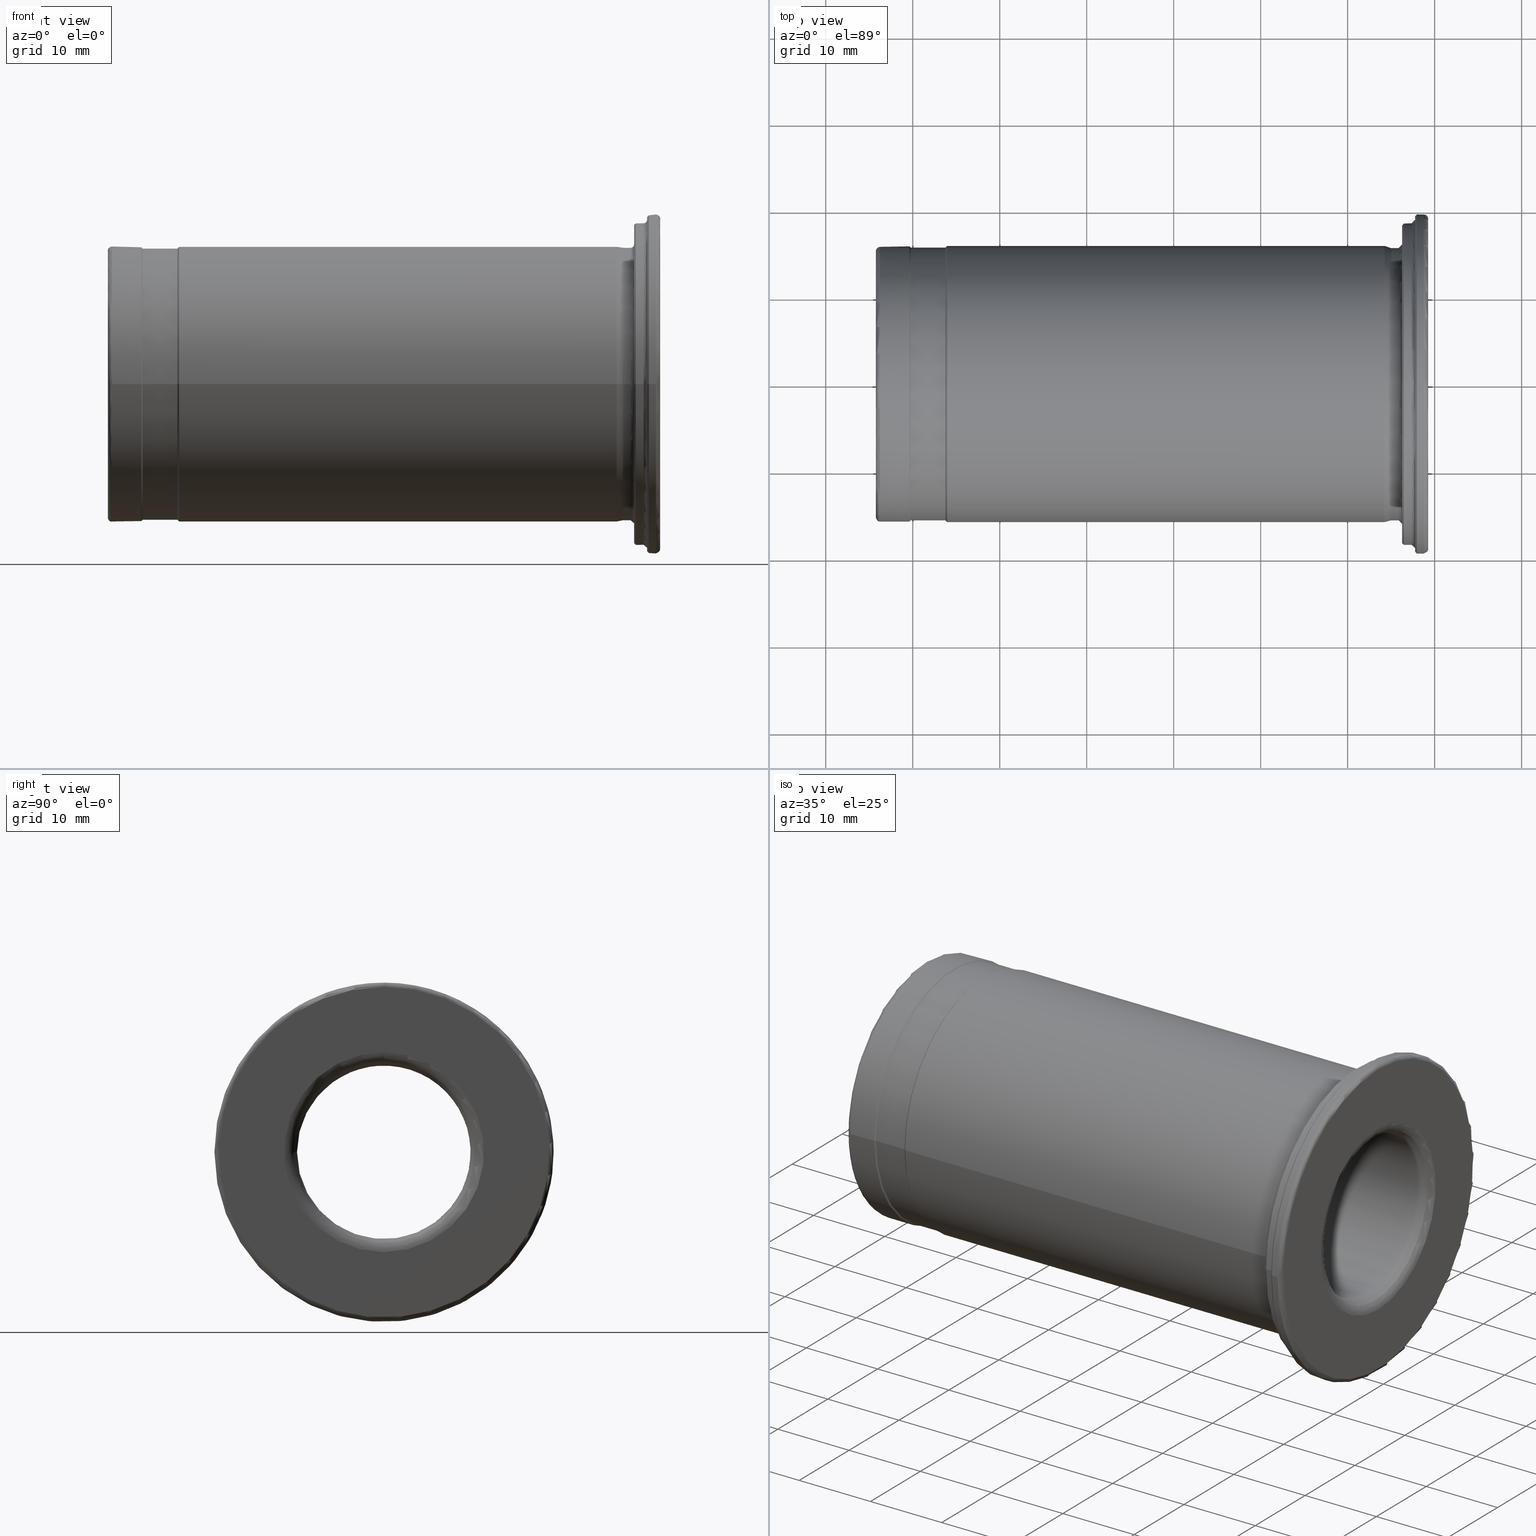
[diagram: canonical four-view strip — front | top / right | iso, engineering-drawing reading convention]
A machine part, canonical four-view strip (front | top / right | iso — engineering-drawing reading convention). The complete STEP part file that produces these views, byte-faithful:
ISO-10303-21;
HEADER;
/* Generated by software containing ST-Developer
 * from STEP Tools, Inc. (www.steptools.com) 
 */

FILE_DESCRIPTION(
/* description */ (''),
/* implementation_level */ '2;1');

FILE_NAME(
/* name */ 
'\\\\SSKT-NAS\\Lab-Data\\\X2\C5F0AD6CC18C\X0\\\DRAWING_3D\\1. \X2\C778BCA4D130\X0\\\
4. LAY-OUT\\ACCESSORY&OTEHERS\\HYDRAULIC CHUCK\\REDUCTION SLEEVE (COLL
ET)\\HS-\X2\D574C678\X0\\\HS31.75\\HS31.75-20\\HS31.75-20.stp',
/* time_stamp */ '2023-08-17T14:51:01+09:00',
/* author */ ('YSH'),
/* organization */ (''),
/* preprocessor_version */ 'ST-DEVELOPER v18.1',
/* originating_system */ 'Autodesk Inventor 2022',
/* authorisation */ '');

FILE_SCHEMA (('AUTOMOTIVE_DESIGN { 1 0 10303 214 3 1 1 }'));
ENDSEC;

DATA;
#10=MECHANICAL_DESIGN_GEOMETRIC_PRESENTATION_REPRESENTATION('',(#13),#878);
#11=SHAPE_REPRESENTATION_RELATIONSHIP('SRR','None',#885,#12);
#12=ADVANCED_BREP_SHAPE_REPRESENTATION('',(#14),#877);
#13=STYLED_ITEM('',(#894),#14);
#14=MANIFOLD_SOLID_BREP('\X2\C194B9ACB4DC\X0\1',#460);
#15=FACE_BOUND('',#76,.T.);
#16=FACE_BOUND('',#88,.T.);
#17=FACE_BOUND('',#93,.T.);
#18=FACE_BOUND('',#98,.T.);
#19=PLANE('',#502);
#20=PLANE('',#531);
#21=PLANE('',#541);
#22=PLANE('',#551);
#23=TOROIDAL_SURFACE('',#492,14.4999999999996,1.5);
#24=TOROIDAL_SURFACE('',#499,14.4999999999996,1.5);
#25=TOROIDAL_SURFACE('',#504,15.3250000000018,0.5);
#26=TOROIDAL_SURFACE('',#521,16.0750000000023,0.4);
#27=TOROIDAL_SURFACE('',#528,16.0750000000018,0.4);
#28=TOROIDAL_SURFACE('',#538,18.9000000000001,0.4);
#29=TOROIDAL_SURFACE('',#548,19.,0.5);
#30=TOROIDAL_SURFACE('',#553,11.5000000000005,1.5);
#31=TOROIDAL_SURFACE('',#560,11.5000000000005,1.5);
#32=CONICAL_SURFACE('',#487,11.4999999999988,0.78539816339791);
#33=CONICAL_SURFACE('',#496,13.2452255443927,0.52359877559794);
#34=CONICAL_SURFACE('',#510,15.7500000000019,0.785398163396797);
#35=CONICAL_SURFACE('',#514,15.7750000000009,0.785398163397049);
#36=CONICAL_SURFACE('',#518,15.7818148347441,0.261799387799245);
#37=CONICAL_SURFACE('',#533,18.400000000001,0.785398163397448);
#38=CONICAL_SURFACE('',#543,19.3999999999996,0.785398163397448);
#39=CONICAL_SURFACE('',#557,10.2452255443938,0.523598775598702);
#40=FACE_OUTER_BOUND('',#69,.T.);
#41=FACE_OUTER_BOUND('',#70,.T.);
#42=FACE_OUTER_BOUND('',#71,.T.);
#43=FACE_OUTER_BOUND('',#72,.T.);
#44=FACE_OUTER_BOUND('',#73,.T.);
#45=FACE_OUTER_BOUND('',#74,.T.);
#46=FACE_OUTER_BOUND('',#75,.T.);
#47=FACE_OUTER_BOUND('',#77,.T.);
#48=FACE_OUTER_BOUND('',#78,.T.);
#49=FACE_OUTER_BOUND('',#79,.T.);
#50=FACE_OUTER_BOUND('',#80,.T.);
#51=FACE_OUTER_BOUND('',#81,.T.);
#52=FACE_OUTER_BOUND('',#82,.T.);
#53=FACE_OUTER_BOUND('',#83,.T.);
#54=FACE_OUTER_BOUND('',#84,.T.);
#55=FACE_OUTER_BOUND('',#85,.T.);
#56=FACE_OUTER_BOUND('',#86,.T.);
#57=FACE_OUTER_BOUND('',#87,.T.);
#58=FACE_OUTER_BOUND('',#89,.T.);
#59=FACE_OUTER_BOUND('',#90,.T.);
#60=FACE_OUTER_BOUND('',#91,.T.);
#61=FACE_OUTER_BOUND('',#92,.T.);
#62=FACE_OUTER_BOUND('',#94,.T.);
#63=FACE_OUTER_BOUND('',#95,.T.);
#64=FACE_OUTER_BOUND('',#96,.T.);
#65=FACE_OUTER_BOUND('',#97,.T.);
#66=FACE_OUTER_BOUND('',#99,.T.);
#67=FACE_OUTER_BOUND('',#100,.T.);
#68=FACE_OUTER_BOUND('',#101,.T.);
#69=EDGE_LOOP('',(#291,#292,#293,#294,#295));
#70=EDGE_LOOP('',(#296,#297,#298,#299));
#71=EDGE_LOOP('',(#300,#301,#302,#303,#304));
#72=EDGE_LOOP('',(#305,#306,#307,#308,#309,#310));
#73=EDGE_LOOP('',(#311,#312,#313,#314,#315,#316));
#74=EDGE_LOOP('',(#317,#318,#319,#320,#321));
#75=EDGE_LOOP('',(#322));
#76=EDGE_LOOP('',(#323));
#77=EDGE_LOOP('',(#324,#325,#326,#327,#328));
#78=EDGE_LOOP('',(#329,#330,#331,#332,#333));
#79=EDGE_LOOP('',(#334,#335,#336,#337));
#80=EDGE_LOOP('',(#338,#339,#340,#341));
#81=EDGE_LOOP('',(#342,#343,#344,#345));
#82=EDGE_LOOP('',(#346,#347,#348,#349));
#83=EDGE_LOOP('',(#350,#351,#352,#353,#354));
#84=EDGE_LOOP('',(#355,#356,#357,#358,#359,#360));
#85=EDGE_LOOP('',(#361,#362,#363,#364,#365,#366));
#86=EDGE_LOOP('',(#367,#368,#369,#370,#371));
#87=EDGE_LOOP('',(#372));
#88=EDGE_LOOP('',(#373));
#89=EDGE_LOOP('',(#374,#375,#376,#377));
#90=EDGE_LOOP('',(#378,#379,#380,#381,#382));
#91=EDGE_LOOP('',(#383,#384,#385,#386,#387));
#92=EDGE_LOOP('',(#388));
#93=EDGE_LOOP('',(#389));
#94=EDGE_LOOP('',(#390,#391,#392,#393));
#95=EDGE_LOOP('',(#394,#395,#396,#397,#398));
#96=EDGE_LOOP('',(#399,#400,#401,#402,#403));
#97=EDGE_LOOP('',(#404));
#98=EDGE_LOOP('',(#405));
#99=EDGE_LOOP('',(#406,#407,#408,#409,#410));
#100=EDGE_LOOP('',(#411,#412,#413,#414,#415,#416));
#101=EDGE_LOOP('',(#417,#418,#419,#420,#421,#422));
#102=LINE('',#745,#118);
#103=LINE('',#749,#119);
#104=LINE('',#753,#120);
#105=LINE('',#765,#121);
#106=LINE('',#785,#122);
#107=LINE('',#789,#123);
#108=LINE('',#793,#124);
#109=LINE('',#797,#125);
#110=LINE('',#801,#126);
#111=LINE('',#806,#127);
#112=LINE('',#818,#128);
#113=LINE('',#830,#129);
#114=LINE('',#835,#130);
#115=LINE('',#847,#131);
#116=LINE('',#852,#132);
#117=LINE('',#869,#133);
#118=VECTOR('',#570,10.);
#119=VECTOR('',#575,11.4999999999988);
#120=VECTOR('',#580,12.9999999999996);
#121=VECTOR('',#595,13.2452255443927);
#122=VECTOR('',#622,15.8250000000018);
#123=VECTOR('',#627,15.7500000000019);
#124=VECTOR('',#632,15.6750000000021);
#125=VECTOR('',#637,15.7750000000009);
#126=VECTOR('',#642,15.8750000000001);
#127=VECTOR('',#647,15.7818148347441);
#128=VECTOR('',#662,15.6750000000026);
#129=VECTOR('',#679,18.400000000001);
#130=VECTOR('',#684,18.5000000000005);
#131=VECTOR('',#701,19.3999999999996);
#132=VECTOR('',#706,19.5);
#133=VECTOR('',#729,10.2452255443938);
#134=CIRCLE('',#484,10.);
#135=CIRCLE('',#485,10.);
#136=CIRCLE('',#486,10.);
#137=CIRCLE('',#488,12.9999999999992);
#138=CIRCLE('',#490,12.9999999999996);
#139=CIRCLE('',#491,12.9999999999996);
#140=CIRCLE('',#493,13.0511112605659);
#141=CIRCLE('',#494,13.0511112605659);
#142=CIRCLE('',#495,1.5);
#143=CIRCLE('',#497,13.4393398282196);
#144=CIRCLE('',#498,13.4393398282196);
#145=CIRCLE('',#500,14.4999999999996);
#146=CIRCLE('',#501,1.5);
#147=CIRCLE('',#503,15.3250000000018);
#148=CIRCLE('',#505,15.8250000000018);
#149=CIRCLE('',#506,15.8250000000018);
#150=CIRCLE('',#507,0.5);
#151=CIRCLE('',#509,15.8250000000018);
#152=CIRCLE('',#511,15.6750000000021);
#153=CIRCLE('',#513,15.6750000000021);
#154=CIRCLE('',#515,15.8749999999997);
#155=CIRCLE('',#517,15.8750000000006);
#156=CIRCLE('',#519,15.6886296694867);
#157=CIRCLE('',#520,15.6886296694867);
#158=CIRCLE('',#522,0.4);
#159=CIRCLE('',#523,15.6750000000023);
#160=CIRCLE('',#524,15.6750000000023);
#161=CIRCLE('',#526,15.6750000000026);
#162=CIRCLE('',#527,15.6750000000026);
#163=CIRCLE('',#529,0.4);
#164=CIRCLE('',#530,16.0750000000018);
#165=CIRCLE('',#532,18.3000000000011);
#166=CIRCLE('',#534,18.5000000000009);
#167=CIRCLE('',#536,18.5);
#168=CIRCLE('',#537,18.5);
#169=CIRCLE('',#539,0.4);
#170=CIRCLE('',#540,18.9000000000001);
#171=CIRCLE('',#542,19.2999999999997);
#172=CIRCLE('',#544,19.4999999999995);
#173=CIRCLE('',#546,19.5);
#174=CIRCLE('',#547,19.5);
#175=CIRCLE('',#549,19.);
#176=CIRCLE('',#550,0.5);
#177=CIRCLE('',#552,11.5000000000005);
#178=CIRCLE('',#554,10.4393398282205);
#179=CIRCLE('',#555,10.4393398282205);
#180=CIRCLE('',#556,1.5);
#181=CIRCLE('',#558,10.0511112605669);
#182=CIRCLE('',#559,10.0511112605669);
#183=CIRCLE('',#561,1.5);
#184=VERTEX_POINT('',#740);
#185=VERTEX_POINT('',#741);
#186=VERTEX_POINT('',#744);
#187=VERTEX_POINT('',#748);
#188=VERTEX_POINT('',#752);
#189=VERTEX_POINT('',#754);
#190=VERTEX_POINT('',#758);
#191=VERTEX_POINT('',#759);
#192=VERTEX_POINT('',#764);
#193=VERTEX_POINT('',#766);
#194=VERTEX_POINT('',#770);
#195=VERTEX_POINT('',#774);
#196=VERTEX_POINT('',#777);
#197=VERTEX_POINT('',#778);
#198=VERTEX_POINT('',#783);
#199=VERTEX_POINT('',#787);
#200=VERTEX_POINT('',#791);
#201=VERTEX_POINT('',#795);
#202=VERTEX_POINT('',#799);
#203=VERTEX_POINT('',#803);
#204=VERTEX_POINT('',#804);
#205=VERTEX_POINT('',#809);
#206=VERTEX_POINT('',#811);
#207=VERTEX_POINT('',#815);
#208=VERTEX_POINT('',#816);
#209=VERTEX_POINT('',#821);
#210=VERTEX_POINT('',#825);
#211=VERTEX_POINT('',#828);
#212=VERTEX_POINT('',#832);
#213=VERTEX_POINT('',#833);
#214=VERTEX_POINT('',#838);
#215=VERTEX_POINT('',#842);
#216=VERTEX_POINT('',#845);
#217=VERTEX_POINT('',#849);
#218=VERTEX_POINT('',#850);
#219=VERTEX_POINT('',#855);
#220=VERTEX_POINT('',#859);
#221=VERTEX_POINT('',#862);
#222=VERTEX_POINT('',#863);
#223=VERTEX_POINT('',#868);
#224=VERTEX_POINT('',#870);
#225=EDGE_CURVE('',#184,#185,#134,.T.);
#226=EDGE_CURVE('',#185,#184,#135,.T.);
#227=EDGE_CURVE('',#184,#186,#102,.T.);
#228=EDGE_CURVE('',#186,#186,#136,.T.);
#229=EDGE_CURVE('',#186,#187,#103,.T.);
#230=EDGE_CURVE('',#187,#187,#137,.T.);
#231=EDGE_CURVE('',#187,#188,#104,.T.);
#232=EDGE_CURVE('',#189,#188,#138,.T.);
#233=EDGE_CURVE('',#188,#189,#139,.T.);
#234=EDGE_CURVE('',#190,#191,#140,.T.);
#235=EDGE_CURVE('',#191,#190,#141,.T.);
#236=EDGE_CURVE('',#191,#189,#142,.T.);
#237=EDGE_CURVE('',#190,#192,#105,.T.);
#238=EDGE_CURVE('',#193,#192,#143,.T.);
#239=EDGE_CURVE('',#192,#193,#144,.T.);
#240=EDGE_CURVE('',#194,#194,#145,.T.);
#241=EDGE_CURVE('',#194,#193,#146,.T.);
#242=EDGE_CURVE('',#195,#195,#147,.T.);
#243=EDGE_CURVE('',#196,#197,#148,.T.);
#244=EDGE_CURVE('',#197,#196,#149,.T.);
#245=EDGE_CURVE('',#197,#195,#150,.T.);
#246=EDGE_CURVE('',#198,#198,#151,.T.);
#247=EDGE_CURVE('',#198,#196,#106,.T.);
#248=EDGE_CURVE('',#199,#199,#152,.T.);
#249=EDGE_CURVE('',#199,#198,#107,.T.);
#250=EDGE_CURVE('',#200,#200,#153,.T.);
#251=EDGE_CURVE('',#200,#199,#108,.T.);
#252=EDGE_CURVE('',#201,#201,#154,.T.);
#253=EDGE_CURVE('',#201,#200,#109,.T.);
#254=EDGE_CURVE('',#202,#202,#155,.T.);
#255=EDGE_CURVE('',#202,#201,#110,.T.);
#256=EDGE_CURVE('',#203,#204,#156,.T.);
#257=EDGE_CURVE('',#203,#202,#111,.T.);
#258=EDGE_CURVE('',#204,#203,#157,.T.);
#259=EDGE_CURVE('',#204,#205,#158,.T.);
#260=EDGE_CURVE('',#206,#205,#159,.T.);
#261=EDGE_CURVE('',#205,#206,#160,.T.);
#262=EDGE_CURVE('',#207,#208,#161,.T.);
#263=EDGE_CURVE('',#207,#206,#112,.T.);
#264=EDGE_CURVE('',#208,#207,#162,.T.);
#265=EDGE_CURVE('',#208,#209,#163,.T.);
#266=EDGE_CURVE('',#209,#209,#164,.T.);
#267=EDGE_CURVE('',#210,#210,#165,.T.);
#268=EDGE_CURVE('',#211,#211,#166,.T.);
#269=EDGE_CURVE('',#211,#210,#113,.T.);
#270=EDGE_CURVE('',#212,#213,#167,.T.);
#271=EDGE_CURVE('',#212,#211,#114,.T.);
#272=EDGE_CURVE('',#213,#212,#168,.T.);
#273=EDGE_CURVE('',#213,#214,#169,.T.);
#274=EDGE_CURVE('',#214,#214,#170,.T.);
#275=EDGE_CURVE('',#215,#215,#171,.T.);
#276=EDGE_CURVE('',#216,#216,#172,.T.);
#277=EDGE_CURVE('',#216,#215,#115,.T.);
#278=EDGE_CURVE('',#217,#218,#173,.T.);
#279=EDGE_CURVE('',#217,#216,#116,.T.);
#280=EDGE_CURVE('',#218,#217,#174,.T.);
#281=EDGE_CURVE('',#219,#219,#175,.T.);
#282=EDGE_CURVE('',#219,#218,#176,.T.);
#283=EDGE_CURVE('',#220,#220,#177,.T.);
#284=EDGE_CURVE('',#221,#222,#178,.T.);
#285=EDGE_CURVE('',#222,#221,#179,.T.);
#286=EDGE_CURVE('',#222,#220,#180,.T.);
#287=EDGE_CURVE('',#221,#223,#117,.T.);
#288=EDGE_CURVE('',#224,#223,#181,.T.);
#289=EDGE_CURVE('',#223,#224,#182,.T.);
#290=EDGE_CURVE('',#185,#224,#183,.T.);
#291=ORIENTED_EDGE('',*,*,#225,.T.);
#292=ORIENTED_EDGE('',*,*,#226,.T.);
#293=ORIENTED_EDGE('',*,*,#227,.T.);
#294=ORIENTED_EDGE('',*,*,#228,.F.);
#295=ORIENTED_EDGE('',*,*,#227,.F.);
#296=ORIENTED_EDGE('',*,*,#228,.T.);
#297=ORIENTED_EDGE('',*,*,#229,.T.);
#298=ORIENTED_EDGE('',*,*,#230,.F.);
#299=ORIENTED_EDGE('',*,*,#229,.F.);
#300=ORIENTED_EDGE('',*,*,#230,.T.);
#301=ORIENTED_EDGE('',*,*,#231,.T.);
#302=ORIENTED_EDGE('',*,*,#232,.F.);
#303=ORIENTED_EDGE('',*,*,#233,.F.);
#304=ORIENTED_EDGE('',*,*,#231,.F.);
#305=ORIENTED_EDGE('',*,*,#234,.F.);
#306=ORIENTED_EDGE('',*,*,#235,.F.);
#307=ORIENTED_EDGE('',*,*,#236,.T.);
#308=ORIENTED_EDGE('',*,*,#232,.T.);
#309=ORIENTED_EDGE('',*,*,#233,.T.);
#310=ORIENTED_EDGE('',*,*,#236,.F.);
#311=ORIENTED_EDGE('',*,*,#234,.T.);
#312=ORIENTED_EDGE('',*,*,#235,.T.);
#313=ORIENTED_EDGE('',*,*,#237,.T.);
#314=ORIENTED_EDGE('',*,*,#238,.F.);
#315=ORIENTED_EDGE('',*,*,#239,.F.);
#316=ORIENTED_EDGE('',*,*,#237,.F.);
#317=ORIENTED_EDGE('',*,*,#240,.F.);
#318=ORIENTED_EDGE('',*,*,#241,.T.);
#319=ORIENTED_EDGE('',*,*,#238,.T.);
#320=ORIENTED_EDGE('',*,*,#239,.T.);
#321=ORIENTED_EDGE('',*,*,#241,.F.);
#322=ORIENTED_EDGE('',*,*,#242,.F.);
#323=ORIENTED_EDGE('',*,*,#240,.T.);
#324=ORIENTED_EDGE('',*,*,#243,.F.);
#325=ORIENTED_EDGE('',*,*,#244,.F.);
#326=ORIENTED_EDGE('',*,*,#245,.T.);
#327=ORIENTED_EDGE('',*,*,#242,.T.);
#328=ORIENTED_EDGE('',*,*,#245,.F.);
#329=ORIENTED_EDGE('',*,*,#246,.F.);
#330=ORIENTED_EDGE('',*,*,#247,.T.);
#331=ORIENTED_EDGE('',*,*,#243,.T.);
#332=ORIENTED_EDGE('',*,*,#244,.T.);
#333=ORIENTED_EDGE('',*,*,#247,.F.);
#334=ORIENTED_EDGE('',*,*,#248,.F.);
#335=ORIENTED_EDGE('',*,*,#249,.T.);
#336=ORIENTED_EDGE('',*,*,#246,.T.);
#337=ORIENTED_EDGE('',*,*,#249,.F.);
#338=ORIENTED_EDGE('',*,*,#250,.F.);
#339=ORIENTED_EDGE('',*,*,#251,.T.);
#340=ORIENTED_EDGE('',*,*,#248,.T.);
#341=ORIENTED_EDGE('',*,*,#251,.F.);
#342=ORIENTED_EDGE('',*,*,#252,.F.);
#343=ORIENTED_EDGE('',*,*,#253,.T.);
#344=ORIENTED_EDGE('',*,*,#250,.T.);
#345=ORIENTED_EDGE('',*,*,#253,.F.);
#346=ORIENTED_EDGE('',*,*,#254,.F.);
#347=ORIENTED_EDGE('',*,*,#255,.T.);
#348=ORIENTED_EDGE('',*,*,#252,.T.);
#349=ORIENTED_EDGE('',*,*,#255,.F.);
#350=ORIENTED_EDGE('',*,*,#256,.F.);
#351=ORIENTED_EDGE('',*,*,#257,.T.);
#352=ORIENTED_EDGE('',*,*,#254,.T.);
#353=ORIENTED_EDGE('',*,*,#257,.F.);
#354=ORIENTED_EDGE('',*,*,#258,.F.);
#355=ORIENTED_EDGE('',*,*,#256,.T.);
#356=ORIENTED_EDGE('',*,*,#259,.T.);
#357=ORIENTED_EDGE('',*,*,#260,.F.);
#358=ORIENTED_EDGE('',*,*,#261,.F.);
#359=ORIENTED_EDGE('',*,*,#259,.F.);
#360=ORIENTED_EDGE('',*,*,#258,.T.);
#361=ORIENTED_EDGE('',*,*,#262,.F.);
#362=ORIENTED_EDGE('',*,*,#263,.T.);
#363=ORIENTED_EDGE('',*,*,#260,.T.);
#364=ORIENTED_EDGE('',*,*,#261,.T.);
#365=ORIENTED_EDGE('',*,*,#263,.F.);
#366=ORIENTED_EDGE('',*,*,#264,.F.);
#367=ORIENTED_EDGE('',*,*,#262,.T.);
#368=ORIENTED_EDGE('',*,*,#265,.T.);
#369=ORIENTED_EDGE('',*,*,#266,.F.);
#370=ORIENTED_EDGE('',*,*,#265,.F.);
#371=ORIENTED_EDGE('',*,*,#264,.T.);
#372=ORIENTED_EDGE('',*,*,#267,.F.);
#373=ORIENTED_EDGE('',*,*,#266,.T.);
#374=ORIENTED_EDGE('',*,*,#268,.F.);
#375=ORIENTED_EDGE('',*,*,#269,.T.);
#376=ORIENTED_EDGE('',*,*,#267,.T.);
#377=ORIENTED_EDGE('',*,*,#269,.F.);
#378=ORIENTED_EDGE('',*,*,#270,.F.);
#379=ORIENTED_EDGE('',*,*,#271,.T.);
#380=ORIENTED_EDGE('',*,*,#268,.T.);
#381=ORIENTED_EDGE('',*,*,#271,.F.);
#382=ORIENTED_EDGE('',*,*,#272,.F.);
#383=ORIENTED_EDGE('',*,*,#270,.T.);
#384=ORIENTED_EDGE('',*,*,#273,.T.);
#385=ORIENTED_EDGE('',*,*,#274,.F.);
#386=ORIENTED_EDGE('',*,*,#273,.F.);
#387=ORIENTED_EDGE('',*,*,#272,.T.);
#388=ORIENTED_EDGE('',*,*,#275,.F.);
#389=ORIENTED_EDGE('',*,*,#274,.T.);
#390=ORIENTED_EDGE('',*,*,#276,.F.);
#391=ORIENTED_EDGE('',*,*,#277,.T.);
#392=ORIENTED_EDGE('',*,*,#275,.T.);
#393=ORIENTED_EDGE('',*,*,#277,.F.);
#394=ORIENTED_EDGE('',*,*,#278,.F.);
#395=ORIENTED_EDGE('',*,*,#279,.T.);
#396=ORIENTED_EDGE('',*,*,#276,.T.);
#397=ORIENTED_EDGE('',*,*,#279,.F.);
#398=ORIENTED_EDGE('',*,*,#280,.F.);
#399=ORIENTED_EDGE('',*,*,#281,.F.);
#400=ORIENTED_EDGE('',*,*,#282,.T.);
#401=ORIENTED_EDGE('',*,*,#280,.T.);
#402=ORIENTED_EDGE('',*,*,#278,.T.);
#403=ORIENTED_EDGE('',*,*,#282,.F.);
#404=ORIENTED_EDGE('',*,*,#281,.T.);
#405=ORIENTED_EDGE('',*,*,#283,.F.);
#406=ORIENTED_EDGE('',*,*,#284,.F.);
#407=ORIENTED_EDGE('',*,*,#285,.F.);
#408=ORIENTED_EDGE('',*,*,#286,.T.);
#409=ORIENTED_EDGE('',*,*,#283,.T.);
#410=ORIENTED_EDGE('',*,*,#286,.F.);
#411=ORIENTED_EDGE('',*,*,#284,.T.);
#412=ORIENTED_EDGE('',*,*,#285,.T.);
#413=ORIENTED_EDGE('',*,*,#287,.T.);
#414=ORIENTED_EDGE('',*,*,#288,.F.);
#415=ORIENTED_EDGE('',*,*,#289,.F.);
#416=ORIENTED_EDGE('',*,*,#287,.F.);
#417=ORIENTED_EDGE('',*,*,#225,.F.);
#418=ORIENTED_EDGE('',*,*,#226,.F.);
#419=ORIENTED_EDGE('',*,*,#290,.T.);
#420=ORIENTED_EDGE('',*,*,#288,.T.);
#421=ORIENTED_EDGE('',*,*,#289,.T.);
#422=ORIENTED_EDGE('',*,*,#290,.F.);
#423=CYLINDRICAL_SURFACE('',#483,10.);
#424=CYLINDRICAL_SURFACE('',#489,12.9999999999996);
#425=CYLINDRICAL_SURFACE('',#508,15.8250000000018);
#426=CYLINDRICAL_SURFACE('',#512,15.6750000000021);
#427=CYLINDRICAL_SURFACE('',#516,15.8750000000001);
#428=CYLINDRICAL_SURFACE('',#525,15.6750000000026);
#429=CYLINDRICAL_SURFACE('',#535,18.5000000000005);
#430=CYLINDRICAL_SURFACE('',#545,19.5);
#431=ADVANCED_FACE('',(#40),#423,.F.);
#432=ADVANCED_FACE('',(#41),#32,.F.);
#433=ADVANCED_FACE('',(#42),#424,.F.);
#434=ADVANCED_FACE('',(#43),#23,.T.);
#435=ADVANCED_FACE('',(#44),#33,.F.);
#436=ADVANCED_FACE('',(#45),#24,.T.);
#437=ADVANCED_FACE('',(#46,#15),#19,.T.);
#438=ADVANCED_FACE('',(#47),#25,.T.);
#439=ADVANCED_FACE('',(#48),#425,.T.);
#440=ADVANCED_FACE('',(#49),#34,.T.);
#441=ADVANCED_FACE('',(#50),#426,.T.);
#442=ADVANCED_FACE('',(#51),#35,.T.);
#443=ADVANCED_FACE('',(#52),#427,.T.);
#444=ADVANCED_FACE('',(#53),#36,.T.);
#445=ADVANCED_FACE('',(#54),#26,.F.);
#446=ADVANCED_FACE('',(#55),#428,.T.);
#447=ADVANCED_FACE('',(#56),#27,.F.);
#448=ADVANCED_FACE('',(#57,#16),#20,.T.);
#449=ADVANCED_FACE('',(#58),#37,.T.);
#450=ADVANCED_FACE('',(#59),#429,.T.);
#451=ADVANCED_FACE('',(#60),#28,.F.);
#452=ADVANCED_FACE('',(#61,#17),#21,.T.);
#453=ADVANCED_FACE('',(#62),#38,.T.);
#454=ADVANCED_FACE('',(#63),#430,.T.);
#455=ADVANCED_FACE('',(#64),#29,.T.);
#456=ADVANCED_FACE('',(#65,#18),#22,.T.);
#457=ADVANCED_FACE('',(#66),#30,.T.);
#458=ADVANCED_FACE('',(#67),#39,.F.);
#459=ADVANCED_FACE('',(#68),#31,.T.);
#460=CLOSED_SHELL('',(#431,#432,#433,#434,#435,#436,#437,#438,#439,#440,
#441,#442,#443,#444,#445,#446,#447,#448,#449,#450,#451,#452,#453,#454,#455,
#456,#457,#458,#459));
#461=DERIVED_UNIT_ELEMENT(#464,1.);
#462=DERIVED_UNIT_ELEMENT(#880,-3.);
#463=DIMENSIONAL_EXPONENTS(1.,0.,0.,0.,0.,0.,0.);
#464=(
CONVERSION_BASED_UNIT('gram',#466)
MASS_UNIT()
NAMED_UNIT(#463)
);
#465=(
MASS_UNIT()
NAMED_UNIT(*)
SI_UNIT(.KILO.,.GRAM.)
);
#466=MASS_MEASURE_WITH_UNIT(MASS_MEASURE(0.001),#465);
#467=DERIVED_UNIT((#461,#462));
#468=MEASURE_REPRESENTATION_ITEM('density measure',
POSITIVE_RATIO_MEASURE(7.85),#467);
#469=PROPERTY_DEFINITION_REPRESENTATION(#474,#471);
#470=PROPERTY_DEFINITION_REPRESENTATION(#475,#472);
#471=REPRESENTATION('material name',(#473),#877);
#472=REPRESENTATION('density',(#468),#877);
#473=DESCRIPTIVE_REPRESENTATION_ITEM('SUJ2','SUJ2');
#474=PROPERTY_DEFINITION('material property','material name',#887);
#475=PROPERTY_DEFINITION('material property','density of part',#887);
#476=DATE_TIME_ROLE('creation_date');
#477=APPLIED_DATE_AND_TIME_ASSIGNMENT(#478,#476,(#887));
#478=DATE_AND_TIME(#479,#480);
#479=CALENDAR_DATE(2023,17,8);
#480=LOCAL_TIME(0,0,0.,#481);
#481=COORDINATED_UNIVERSAL_TIME_OFFSET(0,0,.BEHIND.);
#482=AXIS2_PLACEMENT_3D('placement',#738,#562,#563);
#483=AXIS2_PLACEMENT_3D('',#739,#564,#565);
#484=AXIS2_PLACEMENT_3D('',#742,#566,#567);
#485=AXIS2_PLACEMENT_3D('',#743,#568,#569);
#486=AXIS2_PLACEMENT_3D('',#746,#571,#572);
#487=AXIS2_PLACEMENT_3D('',#747,#573,#574);
#488=AXIS2_PLACEMENT_3D('',#750,#576,#577);
#489=AXIS2_PLACEMENT_3D('',#751,#578,#579);
#490=AXIS2_PLACEMENT_3D('',#755,#581,#582);
#491=AXIS2_PLACEMENT_3D('',#756,#583,#584);
#492=AXIS2_PLACEMENT_3D('',#757,#585,#586);
#493=AXIS2_PLACEMENT_3D('',#760,#587,#588);
#494=AXIS2_PLACEMENT_3D('',#761,#589,#590);
#495=AXIS2_PLACEMENT_3D('',#762,#591,#592);
#496=AXIS2_PLACEMENT_3D('',#763,#593,#594);
#497=AXIS2_PLACEMENT_3D('',#767,#596,#597);
#498=AXIS2_PLACEMENT_3D('',#768,#598,#599);
#499=AXIS2_PLACEMENT_3D('',#769,#600,#601);
#500=AXIS2_PLACEMENT_3D('',#771,#602,#603);
#501=AXIS2_PLACEMENT_3D('',#772,#604,#605);
#502=AXIS2_PLACEMENT_3D('',#773,#606,#607);
#503=AXIS2_PLACEMENT_3D('',#775,#608,#609);
#504=AXIS2_PLACEMENT_3D('',#776,#610,#611);
#505=AXIS2_PLACEMENT_3D('',#779,#612,#613);
#506=AXIS2_PLACEMENT_3D('',#780,#614,#615);
#507=AXIS2_PLACEMENT_3D('',#781,#616,#617);
#508=AXIS2_PLACEMENT_3D('',#782,#618,#619);
#509=AXIS2_PLACEMENT_3D('',#784,#620,#621);
#510=AXIS2_PLACEMENT_3D('',#786,#623,#624);
#511=AXIS2_PLACEMENT_3D('',#788,#625,#626);
#512=AXIS2_PLACEMENT_3D('',#790,#628,#629);
#513=AXIS2_PLACEMENT_3D('',#792,#630,#631);
#514=AXIS2_PLACEMENT_3D('',#794,#633,#634);
#515=AXIS2_PLACEMENT_3D('',#796,#635,#636);
#516=AXIS2_PLACEMENT_3D('',#798,#638,#639);
#517=AXIS2_PLACEMENT_3D('',#800,#640,#641);
#518=AXIS2_PLACEMENT_3D('',#802,#643,#644);
#519=AXIS2_PLACEMENT_3D('',#805,#645,#646);
#520=AXIS2_PLACEMENT_3D('',#807,#648,#649);
#521=AXIS2_PLACEMENT_3D('',#808,#650,#651);
#522=AXIS2_PLACEMENT_3D('',#810,#652,#653);
#523=AXIS2_PLACEMENT_3D('',#812,#654,#655);
#524=AXIS2_PLACEMENT_3D('',#813,#656,#657);
#525=AXIS2_PLACEMENT_3D('',#814,#658,#659);
#526=AXIS2_PLACEMENT_3D('',#817,#660,#661);
#527=AXIS2_PLACEMENT_3D('',#819,#663,#664);
#528=AXIS2_PLACEMENT_3D('',#820,#665,#666);
#529=AXIS2_PLACEMENT_3D('',#822,#667,#668);
#530=AXIS2_PLACEMENT_3D('',#823,#669,#670);
#531=AXIS2_PLACEMENT_3D('',#824,#671,#672);
#532=AXIS2_PLACEMENT_3D('',#826,#673,#674);
#533=AXIS2_PLACEMENT_3D('',#827,#675,#676);
#534=AXIS2_PLACEMENT_3D('',#829,#677,#678);
#535=AXIS2_PLACEMENT_3D('',#831,#680,#681);
#536=AXIS2_PLACEMENT_3D('',#834,#682,#683);
#537=AXIS2_PLACEMENT_3D('',#836,#685,#686);
#538=AXIS2_PLACEMENT_3D('',#837,#687,#688);
#539=AXIS2_PLACEMENT_3D('',#839,#689,#690);
#540=AXIS2_PLACEMENT_3D('',#840,#691,#692);
#541=AXIS2_PLACEMENT_3D('',#841,#693,#694);
#542=AXIS2_PLACEMENT_3D('',#843,#695,#696);
#543=AXIS2_PLACEMENT_3D('',#844,#697,#698);
#544=AXIS2_PLACEMENT_3D('',#846,#699,#700);
#545=AXIS2_PLACEMENT_3D('',#848,#702,#703);
#546=AXIS2_PLACEMENT_3D('',#851,#704,#705);
#547=AXIS2_PLACEMENT_3D('',#853,#707,#708);
#548=AXIS2_PLACEMENT_3D('',#854,#709,#710);
#549=AXIS2_PLACEMENT_3D('',#856,#711,#712);
#550=AXIS2_PLACEMENT_3D('',#857,#713,#714);
#551=AXIS2_PLACEMENT_3D('',#858,#715,#716);
#552=AXIS2_PLACEMENT_3D('',#860,#717,#718);
#553=AXIS2_PLACEMENT_3D('',#861,#719,#720);
#554=AXIS2_PLACEMENT_3D('',#864,#721,#722);
#555=AXIS2_PLACEMENT_3D('',#865,#723,#724);
#556=AXIS2_PLACEMENT_3D('',#866,#725,#726);
#557=AXIS2_PLACEMENT_3D('',#867,#727,#728);
#558=AXIS2_PLACEMENT_3D('',#871,#730,#731);
#559=AXIS2_PLACEMENT_3D('',#872,#732,#733);
#560=AXIS2_PLACEMENT_3D('',#873,#734,#735);
#561=AXIS2_PLACEMENT_3D('',#874,#736,#737);
#562=DIRECTION('axis',(0.,0.,1.));
#563=DIRECTION('refdir',(1.,0.,0.));
#564=DIRECTION('center_axis',(1.,0.,0.));
#565=DIRECTION('ref_axis',(0.,1.,0.));
#566=DIRECTION('center_axis',(1.,0.,0.));
#567=DIRECTION('ref_axis',(0.,0.,-1.));
#568=DIRECTION('center_axis',(1.,0.,0.));
#569=DIRECTION('ref_axis',(0.,0.,-1.));
#570=DIRECTION('',(-1.,0.,0.));
#571=DIRECTION('center_axis',(1.,0.,0.));
#572=DIRECTION('ref_axis',(0.,0.,-1.));
#573=DIRECTION('center_axis',(-1.,0.,0.));
#574=DIRECTION('ref_axis',(0.,1.,0.));
#575=DIRECTION('',(-0.707106781186221,-0.707106781186874,-8.65956056235893E-17));
#576=DIRECTION('center_axis',(1.,0.,0.));
#577=DIRECTION('ref_axis',(0.,0.,-1.));
#578=DIRECTION('center_axis',(1.,0.,0.));
#579=DIRECTION('ref_axis',(0.,1.,0.));
#580=DIRECTION('',(-1.,0.,0.));
#581=DIRECTION('center_axis',(1.,0.,0.));
#582=DIRECTION('ref_axis',(0.,0.,-1.));
#583=DIRECTION('center_axis',(1.,0.,0.));
#584=DIRECTION('ref_axis',(0.,0.,-1.));
#585=DIRECTION('center_axis',(1.,0.,0.));
#586=DIRECTION('ref_axis',(0.,0.,-1.));
#587=DIRECTION('center_axis',(1.,0.,0.));
#588=DIRECTION('ref_axis',(0.,0.,-1.));
#589=DIRECTION('center_axis',(1.,0.,0.));
#590=DIRECTION('ref_axis',(0.,0.,-1.));
#591=DIRECTION('center_axis',(0.,-1.,-1.22464679914735E-16));
#592=DIRECTION('ref_axis',(0.,-1.22464679914735E-16,1.));
#593=DIRECTION('center_axis',(-1.,0.,0.));
#594=DIRECTION('ref_axis',(0.,1.,0.));
#595=DIRECTION('',(-0.866025403784618,-0.499999999999689,-6.12323399573296E-17));
#596=DIRECTION('center_axis',(1.,0.,0.));
#597=DIRECTION('ref_axis',(0.,0.,-1.));
#598=DIRECTION('center_axis',(1.,0.,0.));
#599=DIRECTION('ref_axis',(0.,0.,-1.));
#600=DIRECTION('center_axis',(1.,0.,0.));
#601=DIRECTION('ref_axis',(0.,0.,-1.));
#602=DIRECTION('center_axis',(1.,0.,0.));
#603=DIRECTION('ref_axis',(0.,0.,-1.));
#604=DIRECTION('center_axis',(0.,-1.,-1.22464679914735E-16));
#605=DIRECTION('ref_axis',(0.,-1.22464679914735E-16,1.));
#606=DIRECTION('center_axis',(-1.,0.,0.));
#607=DIRECTION('ref_axis',(0.,0.,1.));
#608=DIRECTION('center_axis',(1.,0.,0.));
#609=DIRECTION('ref_axis',(0.,0.,-1.));
#610=DIRECTION('center_axis',(1.,0.,0.));
#611=DIRECTION('ref_axis',(0.,0.,-1.));
#612=DIRECTION('center_axis',(1.,0.,0.));
#613=DIRECTION('ref_axis',(0.,0.,-1.));
#614=DIRECTION('center_axis',(1.,0.,0.));
#615=DIRECTION('ref_axis',(0.,0.,-1.));
#616=DIRECTION('center_axis',(0.,-1.,-1.22464679914735E-16));
#617=DIRECTION('ref_axis',(0.,-1.22464679914735E-16,1.));
#618=DIRECTION('center_axis',(1.,0.,0.));
#619=DIRECTION('ref_axis',(0.,1.,0.));
#620=DIRECTION('center_axis',(1.,0.,0.));
#621=DIRECTION('ref_axis',(0.,0.,-1.));
#622=DIRECTION('',(-1.,0.,0.));
#623=DIRECTION('center_axis',(-1.,0.,0.));
#624=DIRECTION('ref_axis',(0.,1.,0.));
#625=DIRECTION('center_axis',(1.,0.,0.));
#626=DIRECTION('ref_axis',(0.,0.,-1.));
#627=DIRECTION('',(-0.707106781187008,-0.707106781186087,-8.65956056234929E-17));
#628=DIRECTION('center_axis',(1.,0.,0.));
#629=DIRECTION('ref_axis',(0.,1.,0.));
#630=DIRECTION('center_axis',(1.,0.,0.));
#631=DIRECTION('ref_axis',(0.,0.,-1.));
#632=DIRECTION('',(-1.,0.,0.));
#633=DIRECTION('center_axis',(1.,0.,0.));
#634=DIRECTION('ref_axis',(0.,1.,0.));
#635=DIRECTION('center_axis',(1.,0.,0.));
#636=DIRECTION('ref_axis',(0.,0.,-1.));
#637=DIRECTION('',(-0.70710678118683,0.707106781186265,8.65956056235147E-17));
#638=DIRECTION('center_axis',(1.,0.,0.));
#639=DIRECTION('ref_axis',(0.,1.,0.));
#640=DIRECTION('center_axis',(1.,0.,0.));
#641=DIRECTION('ref_axis',(0.,0.,-1.));
#642=DIRECTION('',(-1.,0.,0.));
#643=DIRECTION('center_axis',(-1.,0.,0.));
#644=DIRECTION('ref_axis',(0.,1.,0.));
#645=DIRECTION('center_axis',(1.,0.,0.));
#646=DIRECTION('ref_axis',(0.,0.,-1.));
#647=DIRECTION('',(-0.965925826289044,-0.258819045102613,-3.1696191514329E-17));
#648=DIRECTION('center_axis',(1.,0.,0.));
#649=DIRECTION('ref_axis',(0.,0.,-1.));
#650=DIRECTION('center_axis',(1.,0.,0.));
#651=DIRECTION('ref_axis',(0.,0.,-1.));
#652=DIRECTION('center_axis',(0.,-1.,-1.22464679914735E-16));
#653=DIRECTION('ref_axis',(0.,-1.22464679914735E-16,1.));
#654=DIRECTION('center_axis',(1.,0.,0.));
#655=DIRECTION('ref_axis',(0.,0.,-1.));
#656=DIRECTION('center_axis',(1.,0.,0.));
#657=DIRECTION('ref_axis',(0.,0.,-1.));
#658=DIRECTION('center_axis',(1.,0.,0.));
#659=DIRECTION('ref_axis',(0.,1.,0.));
#660=DIRECTION('center_axis',(1.,0.,0.));
#661=DIRECTION('ref_axis',(0.,0.,-1.));
#662=DIRECTION('',(-1.,0.,0.));
#663=DIRECTION('center_axis',(1.,0.,0.));
#664=DIRECTION('ref_axis',(0.,0.,-1.));
#665=DIRECTION('center_axis',(1.,0.,0.));
#666=DIRECTION('ref_axis',(0.,0.,-1.));
#667=DIRECTION('center_axis',(0.,-1.,-1.22464679914735E-16));
#668=DIRECTION('ref_axis',(0.,-1.22464679914735E-16,1.));
#669=DIRECTION('center_axis',(1.,0.,0.));
#670=DIRECTION('ref_axis',(0.,0.,-1.));
#671=DIRECTION('center_axis',(-1.,0.,0.));
#672=DIRECTION('ref_axis',(0.,0.,1.));
#673=DIRECTION('center_axis',(1.,0.,0.));
#674=DIRECTION('ref_axis',(0.,0.,-1.));
#675=DIRECTION('center_axis',(1.,0.,0.));
#676=DIRECTION('ref_axis',(0.,1.,0.));
#677=DIRECTION('center_axis',(1.,0.,0.));
#678=DIRECTION('ref_axis',(0.,0.,-1.));
#679=DIRECTION('',(-0.707106781186547,0.707106781186547,8.65956056235493E-17));
#680=DIRECTION('center_axis',(1.,0.,0.));
#681=DIRECTION('ref_axis',(0.,1.,0.));
#682=DIRECTION('center_axis',(1.,0.,0.));
#683=DIRECTION('ref_axis',(0.,0.,-1.));
#684=DIRECTION('',(-1.,0.,0.));
#685=DIRECTION('center_axis',(1.,0.,0.));
#686=DIRECTION('ref_axis',(0.,0.,-1.));
#687=DIRECTION('center_axis',(1.,0.,0.));
#688=DIRECTION('ref_axis',(0.,0.,-1.));
#689=DIRECTION('center_axis',(0.,-1.,-1.22464679914735E-16));
#690=DIRECTION('ref_axis',(0.,-1.22464679914735E-16,1.));
#691=DIRECTION('center_axis',(1.,0.,0.));
#692=DIRECTION('ref_axis',(0.,0.,-1.));
#693=DIRECTION('center_axis',(-1.,0.,0.));
#694=DIRECTION('ref_axis',(0.,0.,1.));
#695=DIRECTION('center_axis',(1.,0.,0.));
#696=DIRECTION('ref_axis',(0.,0.,-1.));
#697=DIRECTION('center_axis',(1.,0.,0.));
#698=DIRECTION('ref_axis',(0.,1.,0.));
#699=DIRECTION('center_axis',(1.,0.,0.));
#700=DIRECTION('ref_axis',(0.,0.,-1.));
#701=DIRECTION('',(-0.707106781186548,0.707106781186548,8.65956056235493E-17));
#702=DIRECTION('center_axis',(1.,0.,0.));
#703=DIRECTION('ref_axis',(0.,1.,0.));
#704=DIRECTION('center_axis',(1.,0.,0.));
#705=DIRECTION('ref_axis',(0.,0.,-1.));
#706=DIRECTION('',(-1.,0.,0.));
#707=DIRECTION('center_axis',(1.,0.,0.));
#708=DIRECTION('ref_axis',(0.,0.,-1.));
#709=DIRECTION('center_axis',(1.,0.,0.));
#710=DIRECTION('ref_axis',(0.,0.,-1.));
#711=DIRECTION('center_axis',(1.,0.,0.));
#712=DIRECTION('ref_axis',(0.,0.,-1.));
#713=DIRECTION('center_axis',(0.,-1.,-1.22464679914735E-16));
#714=DIRECTION('ref_axis',(0.,-1.22464679914735E-16,1.));
#715=DIRECTION('center_axis',(1.,0.,0.));
#716=DIRECTION('ref_axis',(0.,0.,-1.));
#717=DIRECTION('center_axis',(1.,0.,0.));
#718=DIRECTION('ref_axis',(0.,0.,-1.));
#719=DIRECTION('center_axis',(1.,0.,0.));
#720=DIRECTION('ref_axis',(0.,0.,-1.));
#721=DIRECTION('center_axis',(1.,0.,0.));
#722=DIRECTION('ref_axis',(0.,0.,-1.));
#723=DIRECTION('center_axis',(1.,0.,0.));
#724=DIRECTION('ref_axis',(0.,0.,-1.));
#725=DIRECTION('center_axis',(0.,-1.,-1.22464679914735E-16));
#726=DIRECTION('ref_axis',(0.,-1.22464679914735E-16,1.));
#727=DIRECTION('center_axis',(1.,0.,0.));
#728=DIRECTION('ref_axis',(0.,1.,0.));
#729=DIRECTION('',(-0.866025403784237,0.500000000000349,6.12323399574104E-17));
#730=DIRECTION('center_axis',(1.,0.,0.));
#731=DIRECTION('ref_axis',(0.,0.,-1.));
#732=DIRECTION('center_axis',(1.,0.,0.));
#733=DIRECTION('ref_axis',(0.,0.,-1.));
#734=DIRECTION('center_axis',(1.,0.,0.));
#735=DIRECTION('ref_axis',(0.,0.,-1.));
#736=DIRECTION('center_axis',(0.,-1.,-1.22464679914735E-16));
#737=DIRECTION('ref_axis',(0.,-1.22464679914735E-16,1.));
#738=CARTESIAN_POINT('',(0.,0.,0.));
#739=CARTESIAN_POINT('Origin',(-23.7433936122822,0.,0.));
#740=CARTESIAN_POINT('',(-2.24339361228193,-10.,-1.22464679914736E-15));
#741=CARTESIAN_POINT('',(-2.24339361228193,-1.22464679914736E-15,10.));
#742=CARTESIAN_POINT('Origin',(-2.24339361228193,0.,0.));
#743=CARTESIAN_POINT('Origin',(-2.24339361228193,0.,0.));
#744=CARTESIAN_POINT('',(-45.2433936122824,-10.,-1.22464679914736E-15));
#745=CARTESIAN_POINT('',(-23.7433936122822,-10.,-1.22464679914736E-15));
#746=CARTESIAN_POINT('Origin',(-45.2433936122824,0.,0.));
#747=CARTESIAN_POINT('Origin',(-46.743393612283,0.,0.));
#748=CARTESIAN_POINT('',(-48.2433936122819,-12.9999999999992,-1.59204083889146E-15));
#749=CARTESIAN_POINT('',(-46.743393612283,-11.4999999999988,-1.40834381901931E-15));
#750=CARTESIAN_POINT('Origin',(-48.2433936122819,0.,0.));
#751=CARTESIAN_POINT('Origin',(-55.4933936122819,0.,0.));
#752=CARTESIAN_POINT('',(-62.7433936122819,-12.9999999999996,-1.59204083889151E-15));
#753=CARTESIAN_POINT('',(-55.4933936122819,-12.9999999999996,-1.59204083889151E-15));
#754=CARTESIAN_POINT('',(-62.7433936122819,-1.59204083889151E-15,12.9999999999996));
#755=CARTESIAN_POINT('Origin',(-62.7433936122819,0.,0.));
#756=CARTESIAN_POINT('Origin',(-62.7433936122819,0.,0.));
#757=CARTESIAN_POINT('Origin',(-62.7433936122819,0.,0.));
#758=CARTESIAN_POINT('',(-63.1316221799356,-13.0511112605659,-1.5983001630568E-15));
#759=CARTESIAN_POINT('',(-63.1316221799356,-1.5983001630568E-15,13.0511112605659));
#760=CARTESIAN_POINT('Origin',(-63.1316221799356,0.,0.));
#761=CARTESIAN_POINT('Origin',(-63.1316221799356,0.,0.));
#762=CARTESIAN_POINT('Origin',(-62.7433936122819,-1.77573785876361E-15,
14.4999999999996));
#763=CARTESIAN_POINT('Origin',(-63.4678379819987,0.,0.));
#764=CARTESIAN_POINT('',(-63.8040537840619,-13.4393398282196,-1.64584445032826E-15));
#765=CARTESIAN_POINT('',(-63.4678379819987,-13.2452255443927,-1.62207230669253E-15));
#766=CARTESIAN_POINT('',(-63.8040537840619,-1.64584445032826E-15,13.4393398282196));
#767=CARTESIAN_POINT('Origin',(-63.8040537840619,0.,0.));
#768=CARTESIAN_POINT('Origin',(-63.8040537840619,0.,0.));
#769=CARTESIAN_POINT('Origin',(-62.7433936122819,0.,0.));
#770=CARTESIAN_POINT('',(-64.2433936122819,-1.77573785876361E-15,14.4999999999996));
#771=CARTESIAN_POINT('Origin',(-64.2433936122819,0.,0.));
#772=CARTESIAN_POINT('Origin',(-62.7433936122819,-1.77573785876361E-15,
14.4999999999996));
#773=CARTESIAN_POINT('Origin',(-64.2433936122819,15.3250000000018,0.));
#774=CARTESIAN_POINT('',(-64.2433936122819,-1.87677121969354E-15,15.3250000000018));
#775=CARTESIAN_POINT('Origin',(-64.2433936122819,0.,0.));
#776=CARTESIAN_POINT('Origin',(-63.7433936122828,0.,0.));
#777=CARTESIAN_POINT('',(-63.7433936122828,-15.8250000000018,-1.9380035596509E-15));
#778=CARTESIAN_POINT('',(-63.7433936122828,-1.9380035596509E-15,15.8250000000018));
#779=CARTESIAN_POINT('Origin',(-63.7433936122828,0.,0.));
#780=CARTESIAN_POINT('Origin',(-63.7433936122828,0.,0.));
#781=CARTESIAN_POINT('Origin',(-63.7433936122828,-1.87677121969354E-15,
15.3250000000018));
#782=CARTESIAN_POINT('Origin',(-62.0683936122826,0.,0.));
#783=CARTESIAN_POINT('',(-60.3933936122824,-15.8250000000018,-1.9380035596509E-15));
#784=CARTESIAN_POINT('Origin',(-60.3933936122824,0.,0.));
#785=CARTESIAN_POINT('',(-62.0683936122826,-15.8250000000018,-1.9380035596509E-15));
#786=CARTESIAN_POINT('Origin',(-60.3183936122828,0.,0.));
#787=CARTESIAN_POINT('',(-60.2433936122831,-15.6750000000022,-1.91963385766375E-15));
#788=CARTESIAN_POINT('Origin',(-60.2433936122832,0.,0.));
#789=CARTESIAN_POINT('',(-60.3183936122828,-15.7500000000019,-1.92881870865731E-15));
#790=CARTESIAN_POINT('Origin',(-58.2433936122829,0.,0.));
#791=CARTESIAN_POINT('',(-56.2433936122826,-15.6750000000021,-1.91963385766374E-15));
#792=CARTESIAN_POINT('Origin',(-56.2433936122826,0.,0.));
#793=CARTESIAN_POINT('',(-58.2433936122829,-15.6750000000021,-1.91963385766374E-15));
#794=CARTESIAN_POINT('Origin',(-56.1433936122837,0.,0.));
#795=CARTESIAN_POINT('',(-56.0433936122849,-15.8749999999997,-1.94412679364638E-15));
#796=CARTESIAN_POINT('Origin',(-56.0433936122849,0.,0.));
#797=CARTESIAN_POINT('',(-56.1433936122837,-15.7750000000009,-1.93188032565506E-15));
#798=CARTESIAN_POINT('Origin',(-30.8933936122816,0.,0.));
#799=CARTESIAN_POINT('',(-5.74339361227828,-15.8750000000001,-1.94412679364644E-15));
#800=CARTESIAN_POINT('Origin',(-5.74339361227828,0.,0.));
#801=CARTESIAN_POINT('',(-30.8933936122816,-15.8750000000001,-1.94412679364644E-15));
#802=CARTESIAN_POINT('Origin',(-5.39562184102602,0.,0.));
#803=CARTESIAN_POINT('',(-5.04785006977396,-15.6886296694867,-1.92130301077451E-15));
#804=CARTESIAN_POINT('',(-5.04785006977396,-1.92130301077451E-15,15.6886296694867));
#805=CARTESIAN_POINT('Origin',(-5.04785006977396,0.,0.));
#806=CARTESIAN_POINT('',(-5.39562184102602,-15.7818148347441,-1.93271490221055E-15));
#807=CARTESIAN_POINT('Origin',(-5.04785006977396,0.,0.));
#808=CARTESIAN_POINT('Origin',(-4.944322451733,0.,0.));
#809=CARTESIAN_POINT('',(-4.944322451733,-1.91963385766375E-15,15.6750000000023));
#810=CARTESIAN_POINT('Origin',(-4.944322451733,-1.96861972962965E-15,16.0750000000023));
#811=CARTESIAN_POINT('',(-4.944322451733,-15.6750000000026,-1.9196338576638E-15));
#812=CARTESIAN_POINT('Origin',(-4.944322451733,0.,0.));
#813=CARTESIAN_POINT('Origin',(-4.944322451733,0.,0.));
#814=CARTESIAN_POINT('Origin',(-4.54385803200751,0.,0.));
#815=CARTESIAN_POINT('',(-4.14339361228201,-15.6750000000026,-1.9196338576638E-15));
#816=CARTESIAN_POINT('',(-4.14339361228201,-1.9196338576638E-15,15.6750000000026));
#817=CARTESIAN_POINT('Origin',(-4.14339361228201,0.,0.));
#818=CARTESIAN_POINT('',(-4.54385803200751,-15.6750000000026,-1.9196338576638E-15));
#819=CARTESIAN_POINT('Origin',(-4.14339361228201,0.,0.));
#820=CARTESIAN_POINT('Origin',(-4.14339361228201,0.,0.));
#821=CARTESIAN_POINT('',(-3.74339361228201,-1.96861972962959E-15,16.0750000000018));
#822=CARTESIAN_POINT('Origin',(-4.14339361228201,-1.96861972962959E-15,
16.0750000000018));
#823=CARTESIAN_POINT('Origin',(-3.74339361228201,0.,0.));
#824=CARTESIAN_POINT('Origin',(-3.74339361228191,18.3000000000011,0.));
#825=CARTESIAN_POINT('',(-3.74339361228191,-18.3000000000011,-2.24110364243979E-15));
#826=CARTESIAN_POINT('Origin',(-3.74339361228191,0.,0.));
#827=CARTESIAN_POINT('Origin',(-3.643393612282,0.,0.));
#828=CARTESIAN_POINT('',(-3.54339361228209,-18.5000000000009,-2.26559657842272E-15));
#829=CARTESIAN_POINT('Origin',(-3.54339361228209,0.,0.));
#830=CARTESIAN_POINT('',(-3.643393612282,-18.400000000001,-2.25335011043126E-15));
#831=CARTESIAN_POINT('Origin',(-3.09339361228227,0.,0.));
#832=CARTESIAN_POINT('',(-2.64339361228245,-18.5000000000005,-2.26559657842266E-15));
#833=CARTESIAN_POINT('',(-2.64339361228245,-2.26559657842261E-15,18.5));
#834=CARTESIAN_POINT('Origin',(-2.64339361228245,0.,0.));
#835=CARTESIAN_POINT('',(-3.09339361228227,-18.5000000000005,-2.26559657842266E-15));
#836=CARTESIAN_POINT('Origin',(-2.64339361228245,0.,0.));
#837=CARTESIAN_POINT('Origin',(-2.64339361228199,0.,0.));
#838=CARTESIAN_POINT('',(-2.24339361228199,-2.31458245038851E-15,18.9000000000001));
#839=CARTESIAN_POINT('Origin',(-2.64339361228199,-2.31458245038851E-15,
18.9000000000001));
#840=CARTESIAN_POINT('Origin',(-2.24339361228199,0.,0.));
#841=CARTESIAN_POINT('Origin',(-2.24339361228193,19.2999999999997,0.));
#842=CARTESIAN_POINT('',(-2.24339361228193,-19.2999999999997,-2.36356832235436E-15));
#843=CARTESIAN_POINT('Origin',(-2.24339361228193,0.,0.));
#844=CARTESIAN_POINT('Origin',(-2.14339361228202,0.,0.));
#845=CARTESIAN_POINT('',(-2.04339361228211,-19.4999999999995,-2.38806125833728E-15));
#846=CARTESIAN_POINT('Origin',(-2.04339361228211,0.,0.));
#847=CARTESIAN_POINT('',(-2.14339361228202,-19.3999999999996,-2.37581479034582E-15));
#848=CARTESIAN_POINT('Origin',(-1.64339361228201,0.,0.));
#849=CARTESIAN_POINT('',(-1.24339361228191,-19.5,-2.38806125833734E-15));
#850=CARTESIAN_POINT('',(-1.24339361228191,-2.38806125833734E-15,19.5));
#851=CARTESIAN_POINT('Origin',(-1.24339361228191,0.,0.));
#852=CARTESIAN_POINT('',(-1.64339361228201,-19.5,-2.38806125833734E-15));
#853=CARTESIAN_POINT('Origin',(-1.24339361228191,0.,0.));
#854=CARTESIAN_POINT('Origin',(-1.24339361228191,0.,0.));
#855=CARTESIAN_POINT('',(-0.743393612281906,-2.32682891837997E-15,19.));
#856=CARTESIAN_POINT('Origin',(-0.743393612281906,0.,0.));
#857=CARTESIAN_POINT('Origin',(-1.24339361228191,-2.32682891837997E-15,
19.));
#858=CARTESIAN_POINT('Origin',(-0.743393612281906,11.5000000000005,0.));
#859=CARTESIAN_POINT('',(-0.743393612281906,-1.40834381901952E-15,11.5000000000005));
#860=CARTESIAN_POINT('Origin',(-0.743393612281906,0.,0.));
#861=CARTESIAN_POINT('Origin',(-2.24339361228191,0.,0.));
#862=CARTESIAN_POINT('',(-1.18273344050236,-10.4393398282207,-1.27845041058419E-15));
#863=CARTESIAN_POINT('',(-1.18273344050227,-1.27845041058417E-15,10.4393398282205));
#864=CARTESIAN_POINT('Origin',(-1.18273344050227,0.,0.));
#865=CARTESIAN_POINT('Origin',(-1.18273344050227,0.,0.));
#866=CARTESIAN_POINT('Origin',(-2.24339361228191,-1.40834381901952E-15,
11.5000000000005));
#867=CARTESIAN_POINT('Origin',(-1.51894924256509,0.,0.));
#868=CARTESIAN_POINT('',(-1.85516504462783,-10.0511112605669,-1.23090612331271E-15));
#869=CARTESIAN_POINT('',(-1.51894924256509,-10.2452255443938,-1.25467826694845E-15));
#870=CARTESIAN_POINT('',(-1.85516504462782,-1.23090612331271E-15,10.0511112605669));
#871=CARTESIAN_POINT('Origin',(-1.85516504462782,0.,0.));
#872=CARTESIAN_POINT('Origin',(-1.85516504462782,0.,0.));
#873=CARTESIAN_POINT('Origin',(-2.24339361228193,0.,0.));
#874=CARTESIAN_POINT('Origin',(-2.24339361228193,-1.40834381901952E-15,
11.5000000000005));
#875=UNCERTAINTY_MEASURE_WITH_UNIT(LENGTH_MEASURE(0.01),#879,
'DISTANCE_ACCURACY_VALUE',
'Maximum model space distance between geometric entities at asserted c
onnectivities');
#876=UNCERTAINTY_MEASURE_WITH_UNIT(LENGTH_MEASURE(0.01),#879,
'DISTANCE_ACCURACY_VALUE',
'Maximum model space distance between geometric entities at asserted c
onnectivities');
#877=(
GEOMETRIC_REPRESENTATION_CONTEXT(3)
GLOBAL_UNCERTAINTY_ASSIGNED_CONTEXT((#875))
GLOBAL_UNIT_ASSIGNED_CONTEXT((#879,#881,#882))
REPRESENTATION_CONTEXT('','3D')
);
#878=(
GEOMETRIC_REPRESENTATION_CONTEXT(3)
GLOBAL_UNCERTAINTY_ASSIGNED_CONTEXT((#876))
GLOBAL_UNIT_ASSIGNED_CONTEXT((#879,#881,#882))
REPRESENTATION_CONTEXT('','3D')
);
#879=(
LENGTH_UNIT()
NAMED_UNIT(*)
SI_UNIT(.MILLI.,.METRE.)
);
#880=(
LENGTH_UNIT()
NAMED_UNIT(*)
SI_UNIT(.CENTI.,.METRE.)
);
#881=(
NAMED_UNIT(*)
PLANE_ANGLE_UNIT()
SI_UNIT($,.RADIAN.)
);
#882=(
NAMED_UNIT(*)
SI_UNIT($,.STERADIAN.)
SOLID_ANGLE_UNIT()
);
#883=SHAPE_DEFINITION_REPRESENTATION(#884,#885);
#884=PRODUCT_DEFINITION_SHAPE('',$,#887);
#885=SHAPE_REPRESENTATION('',(#482),#877);
#886=PRODUCT_DEFINITION_CONTEXT('part definition',#891,'design');
#887=PRODUCT_DEFINITION('LO-HS31.75-20','LO-HS31.75-20',#888,#886);
#888=PRODUCT_DEFINITION_FORMATION('',$,#893);
#889=PRODUCT_RELATED_PRODUCT_CATEGORY('LO-HS31.75-20','LO-HS31.75-20',(#893));
#890=APPLICATION_PROTOCOL_DEFINITION('international standard',
'automotive_design',2009,#891);
#891=APPLICATION_CONTEXT(
'Core Data for Automotive Mechanical Design Process');
#892=PRODUCT_CONTEXT('part definition',#891,'mechanical');
#893=PRODUCT('LO-HS31.75-20','LO-HS31.75-20',$,(#892));
#894=PRESENTATION_STYLE_ASSIGNMENT((#895));
#895=SURFACE_STYLE_USAGE(.BOTH.,#898);
#896=SURFACE_STYLE_RENDERING_WITH_PROPERTIES($,#902,(#897));
#897=SURFACE_STYLE_TRANSPARENT(0.480000019073486);
#898=SURFACE_SIDE_STYLE('',(#899,#896));
#899=SURFACE_STYLE_FILL_AREA(#900);
#900=FILL_AREA_STYLE('',(#901));
#901=FILL_AREA_STYLE_COLOUR('',#902);
#902=COLOUR_RGB('',0.0627450980392157,0.670588235294118,0.290196078431373);
ENDSEC;
END-ISO-10303-21;
